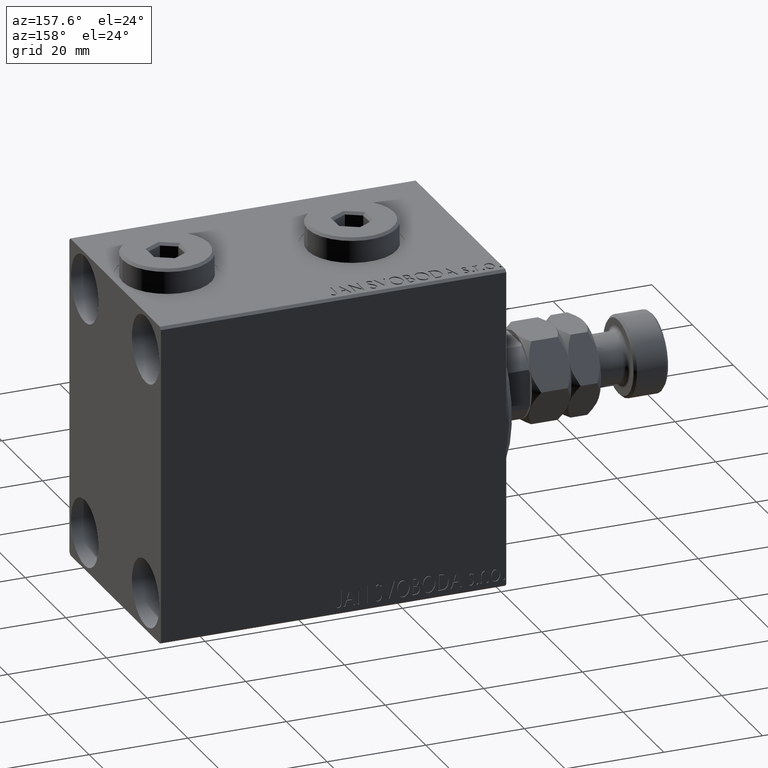
[diagram: clean part render]
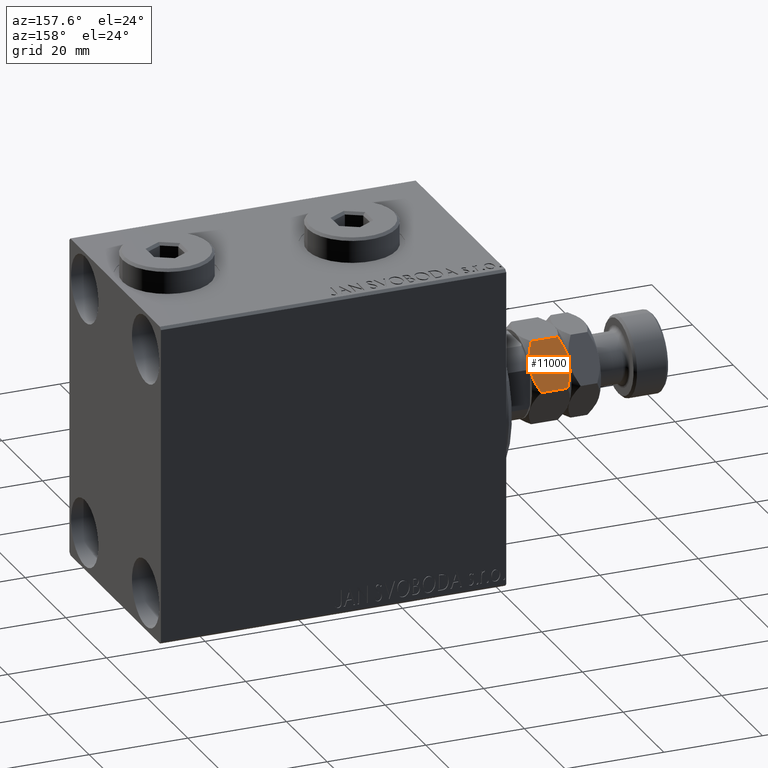
[diagram: same view with one face highlighted and labeled with its STEP entity id]
A machine part, auxiliary view. The second image highlights one B-rep face of the part: STEP entity #11000.
In plain terms, the highlighted planar face has unit normal (-0, -0.866, -0.5).
Its self-contained STEP definition (entity closure, byte-faithful):
#14 = B_SPLINE_CURVE_WITH_KNOTS ( 'NONE', 3,
 ( #38899, #45787, #13342, #24231, #45332, #20662, #9557, #38678 ),
 .UNSPECIFIED., .F., .F.,
 ( 4, 2, 2, 4 ),
 ( 2.544313836669062791E-07, 0.002543776790731949299, 0.003815537970406091776, 0.005087299150080233819 ),
 .UNSPECIFIED. ) ;
#51 = VECTOR ( 'NONE', #43040, 1000.000000000000000 ) ;
#658 = VERTEX_POINT ( 'NONE', #38235 ) ;
#2901 = ORIENTED_EDGE ( 'NONE', *, *, #12503, .F. ) ;
#3812 = AXIS2_PLACEMENT_3D ( 'NONE', #28348, #42562, #17443 ) ;
#4967 = CARTESIAN_POINT ( 'NONE',  ( 7.149107353189447345, 5.687415521394179940, 0.6009384127361230288 ) ) ;
#6381 = B_SPLINE_CURVE_WITH_KNOTS ( 'NONE', 3,
 ( #24291, #42292, #34952, #10533, #6522, #32097 ),
 .UNSPECIFIED., .F., .F.,
 ( 4, 2, 4 ),
 ( 0.005087299150080239890, 0.007613005268011860047, 0.01013871138594348020 ),
 .UNSPECIFIED. ) ;
#6522 = CARTESIAN_POINT ( 'NONE',  ( 0.6656893889372520468, 9.430618628324037189, 7.069381371676074721 ) ) ;
#7185 = ORIENTED_EDGE ( 'NONE', *, *, #28561, .F. ) ;
#7493 = VERTEX_POINT ( 'NONE', #8410 ) ;
#8062 = B_SPLINE_CURVE_WITH_KNOTS ( 'NONE', 3,
 ( #40277, #12084, #41214, #4967, #36971, #26537 ),
 .UNSPECIFIED., .F., .F.,
 ( 4, 2, 4 ),
 ( 0.005087299150080233819, 0.007613005268011856577, 0.01013871138594348020 ),
 .UNSPECIFIED. ) ;
#8410 = CARTESIAN_POINT ( 'NONE',  ( -2.175848833159079736E-16, 9.814954576223636096, 6.685045423776372786 ) ) ;
#9557 = CARTESIAN_POINT ( 'NONE',  ( 3.877770021349439045, 7.576123010542078262, -1.325606562452980031E-15 ) ) ;
#10533 = CARTESIAN_POINT ( 'NONE',  ( 1.350892646810553321, 9.035016342941274203, 7.399061587263881634 ) ) ;
#10587 = CARTESIAN_POINT ( 'NONE',  ( 0.000000000000000000, 9.814954576223636096, 8.000000000000000000 ) ) ;
#11000 = ADVANCED_FACE ( 'NONE', ( #27425 ), #34988, .F. ) ;
#11376 = ORIENTED_EDGE ( 'NONE', *, *, #18142, .F. ) ;
#11470 = CARTESIAN_POINT ( 'NONE',  ( 5.000029324638990857, 6.928186299687297378, 7.966263250401637741 ) ) ;
#12084 = CARTESIAN_POINT ( 'NONE',  ( 4.989245346831671313, 6.934412432177284202, -1.204480850995614688E-15 ) ) ;
#12170 = CARTESIAN_POINT ( 'NONE',  ( 7.151994807070148674, 5.685748449118888992, 7.396790787579876181 ) ) ;
#12503 = EDGE_CURVE ( 'NONE', #658, #23916, #14, .T. ) ;
#12835 = EDGE_CURVE ( 'NONE', #7493, #658, #38560, .T. ) ;
#13342 = CARTESIAN_POINT ( 'NONE',  ( 1.348005192929855989, 9.036683415216572257, 0.6032092124201233752 ) ) ;
#14602 = CARTESIAN_POINT ( 'NONE',  ( 4.249999999999998224, 7.361215932167725740, 8.000000000000000000 ) ) ;
#15411 = B_SPLINE_CURVE_WITH_KNOTS ( 'NONE', 3,
 ( #40131, #33500, #12170, #33037, #43920, #11470, #26626, #25920 ),
 .UNSPECIFIED., .F., .F.,
 ( 4, 2, 2, 4 ),
 ( 2.544313836659951363E-07, 0.002543776790731952769, 0.003815537970406096113, 0.005087299150080239890 ),
 .UNSPECIFIED. ) ;
#15746 = VERTEX_POINT ( 'NONE', #14602 ) ;
#16641 = CARTESIAN_POINT ( 'NONE',  ( 8.500000000000001776, 4.907477288111821601, 6.685045423776367457 ) ) ;
#16946 = ORIENTED_EDGE ( 'NONE', *, *, #31146, .T. ) ;
#17220 = CARTESIAN_POINT ( 'NONE',  ( 8.500000000000001776, 4.907477288111821601, 1.314954576223634763 ) ) ;
#17443 = DIRECTION ( 'NONE',  ( 0.8660254037844389297, -0.4999999999999995559, 0.000000000000000000 ) ) ;
#17875 = VECTOR ( 'NONE', #19947, 1000.000000000000000 ) ;
#18142 = EDGE_CURVE ( 'NONE', #23916, #23019, #8062, .T. ) ;
#19121 = EDGE_CURVE ( 'NONE', #44064, #15746, #15411, .T. ) ;
#19947 = DIRECTION ( 'NONE',  ( -0.000000000000000000, -0.000000000000000000, -1.000000000000000000 ) ) ;
#20662 = CARTESIAN_POINT ( 'NONE',  ( 3.499970675361007810, 7.794245564648166535, 0.03373674959836577697 ) ) ;
#23019 = VERTEX_POINT ( 'NONE', #17220 ) ;
#23844 = ORIENTED_EDGE ( 'NONE', *, *, #19121, .F. ) ;
#23916 = VERTEX_POINT ( 'NONE', #41720 ) ;
#24231 = CARTESIAN_POINT ( 'NONE',  ( 2.407069963478076779, 8.425232084851304037, 0.2536240893246513584 ) ) ;
#24291 = CARTESIAN_POINT ( 'NONE',  ( 4.249999999999998224, 7.361215932167725740, 8.000000000000000000 ) ) ;
#24447 = ORIENTED_EDGE ( 'NONE', *, *, #12835, .F. ) ;
#25920 = CARTESIAN_POINT ( 'NONE',  ( 4.249999999999998224, 7.361215932167725740, 8.000000000000000000 ) ) ;
#26537 = CARTESIAN_POINT ( 'NONE',  ( 8.500000000000001776, 4.907477288111821601, 1.314954576223634763 ) ) ;
#26626 = CARTESIAN_POINT ( 'NONE',  ( 4.622229978650560511, 7.146308853793381211, 8.000000000000003553 ) ) ;
#27304 = LINE ( 'NONE', #41976, #17875 ) ;
#27425 = FACE_OUTER_BOUND ( 'NONE', #32758, .T. ) ;
#28348 = CARTESIAN_POINT ( 'NONE',  ( 8.500000000000001776, 4.907477288111821601, 8.000000000000000000 ) ) ;
#28561 = EDGE_CURVE ( 'NONE', #15746, #7493, #6381, .T. ) ;
#31146 = EDGE_CURVE ( 'NONE', #44064, #23019, #27304, .T. ) ;
#32097 = CARTESIAN_POINT ( 'NONE',  ( -2.175848833159079736E-16, 9.814954576223636096, 6.685045423776372786 ) ) ;
#32758 = EDGE_LOOP ( 'NONE', ( #2901, #24447, #7185, #23844, #16946, #11376 ) ) ;
#33037 = CARTESIAN_POINT ( 'NONE',  ( 6.092930036521924109, 6.297199779484155435, 7.746375910675346255 ) ) ;
#33500 = CARTESIAN_POINT ( 'NONE',  ( 7.833539178395722224, 5.292258622869394635, 7.069826758533938715 ) ) ;
#34952 = CARTESIAN_POINT ( 'NONE',  ( 2.784079206026084830, 8.207565697179239450, 7.869479712616790579 ) ) ;
#34988 = PLANE ( 'NONE',  #3812 ) ;
#36971 = CARTESIAN_POINT ( 'NONE',  ( 7.834310611062749174, 5.291813236011419619, 0.9306186283239317181 ) ) ;
#38235 = CARTESIAN_POINT ( 'NONE',  ( 1.960053746949402388E-16, 9.814954576223636096, 1.314954576223628546 ) ) ;
#38560 = LINE ( 'NONE', #10587, #51 ) ;
#38678 = CARTESIAN_POINT ( 'NONE',  ( 4.249999999999996447, 7.361215932167731957, 0.000000000000000000 ) ) ;
#38899 = CARTESIAN_POINT ( 'NONE',  ( 1.960053746949402388E-16, 9.814954576223636096, 1.314954576223628546 ) ) ;
#40131 = CARTESIAN_POINT ( 'NONE',  ( 8.500000000000001776, 4.907477288111821601, 6.685045423776367457 ) ) ;
#40277 = CARTESIAN_POINT ( 'NONE',  ( 4.249999999999996447, 7.361215932167731957, 0.000000000000000000 ) ) ;
#41214 = CARTESIAN_POINT ( 'NONE',  ( 5.715920793973914726, 6.514866167156221799, 0.1305202873832148891 ) ) ;
#41720 = CARTESIAN_POINT ( 'NONE',  ( 4.249999999999996447, 7.361215932167731957, 0.000000000000000000 ) ) ;
#41976 = CARTESIAN_POINT ( 'NONE',  ( 8.500000000000001776, 4.907477288111821601, 8.000000000000000000 ) ) ;
#42292 = CARTESIAN_POINT ( 'NONE',  ( 3.510754653168325135, 7.788019432158174382, 8.000000000000005329 ) ) ;
#42562 = DIRECTION ( 'NONE',  ( -0.4999999999999995559, -0.8660254037844389297, 0.000000000000000000 ) ) ;
#43040 = DIRECTION ( 'NONE',  ( -0.000000000000000000, -0.000000000000000000, -1.000000000000000000 ) ) ;
#43920 = CARTESIAN_POINT ( 'NONE',  ( 5.733718739115172269, 6.504590518737892957, 7.839178292058171849 ) ) ;
#44064 = VERTEX_POINT ( 'NONE', #16641 ) ;
#45332 = CARTESIAN_POINT ( 'NONE',  ( 2.766281260884825954, 8.217841345597568292, 0.1608217079418317041 ) ) ;
#45787 = CARTESIAN_POINT ( 'NONE',  ( 0.6664608216042851030, 9.430173241466063061, 0.9301732414660577319 ) ) ;